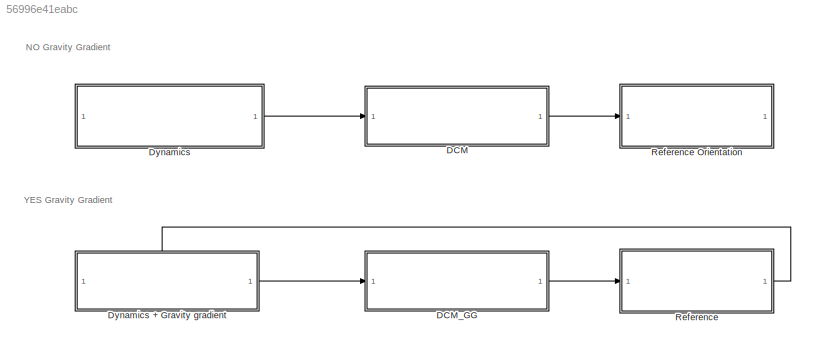
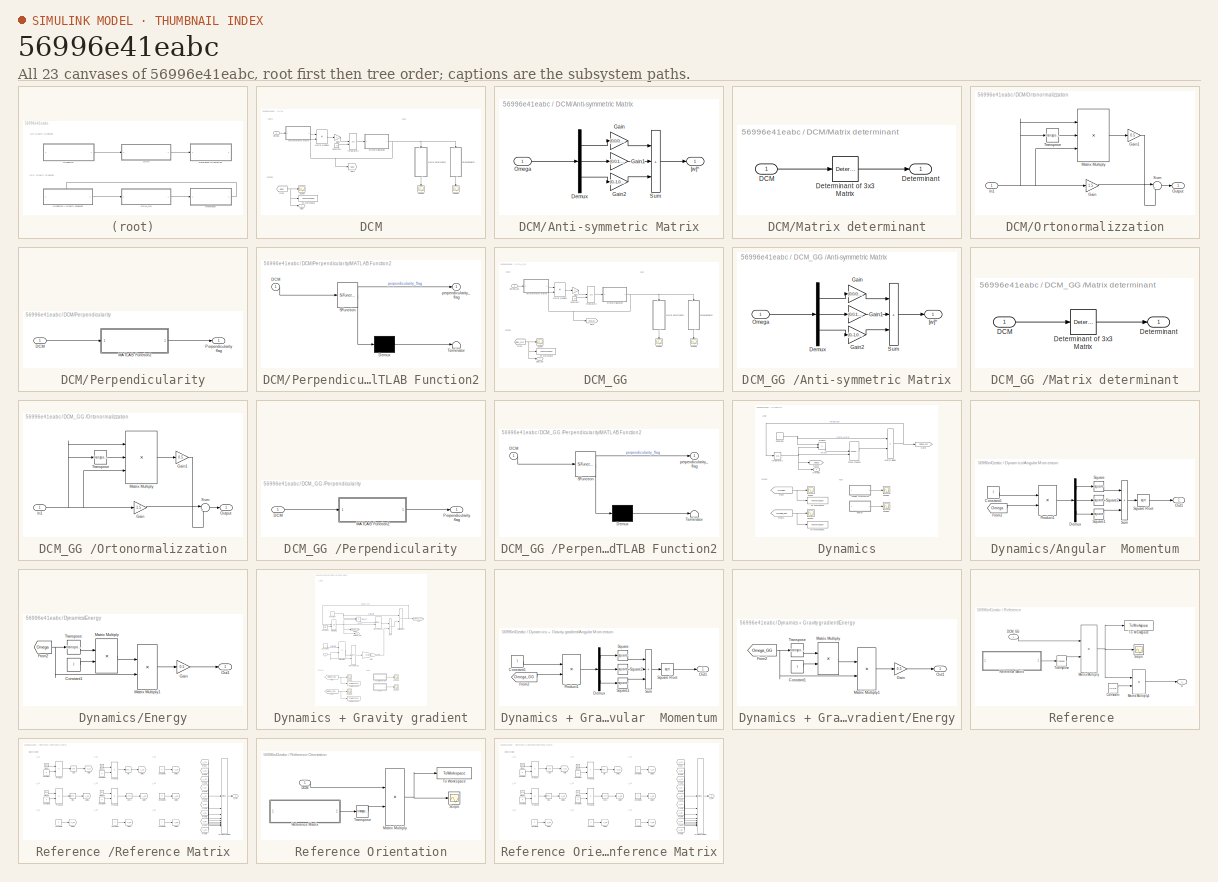
[diagram: thumbnail index - all 23 canvases of the model, root first then tree order]
MODEL slx_56996e41eabc
KIND model
CONFIG AbsTol = auto
CONFIG EnableMultiTasking = off
CONFIG FixedStep = 0.1
CONFIG MaxStep = auto
CONFIG MinStep = auto
CONFIG RelTol = 1e-3
CONFIG SampleTimeConstraint = Unconstrained
CONFIG SolverName = ode8
CONFIG StartTime = 0.0
CONFIG StopTime = 50000
BLOCK [SubSystem] DCM
BLOCK [SubSystem] DCM/Anti-symmetric Matrix
  NameLocation = top
BLOCK [Demux] DCM/Anti-symmetric Matrix/Demux
  Outputs = 3
BLOCK [Gain] DCM/Anti-symmetric Matrix/Gain
  Gain = [0,0,0;0,0,-1;0,1,0]
BLOCK [Gain] DCM/Anti-symmetric Matrix/Gain1
  Gain = [0,0,1;0,0,0;-1,0,0]
BLOCK [Gain] DCM/Anti-symmetric Matrix/Gain2
  Gain = [0,-1,0;1,0,0;0,0,0]
BLOCK [Inport] DCM/Anti-symmetric Matrix/Omega
BLOCK [Sum] DCM/Anti-symmetric Matrix/Sum
  IconShape = rectangular
  Inputs = +++
BLOCK [Outport] DCM/Anti-symmetric Matrix/[w]^
BLOCK [Constant] DCM/Constant1
  Value = A0
BLOCK [Outport] DCM/DCM
BLOCK [From] DCM/From
  GotoTag = DCM
  TagVisibility = global
BLOCK [Gain] DCM/Gain1
  Gain = -1
BLOCK [Goto] DCM/Goto
  GotoTag = DCM
  TagVisibility = global
BLOCK [Integrator] DCM/Integrator2
  InitialConditionSource = external
BLOCK [Product] DCM/Matrix Multiply1
  Multiplication = Matrix(*)
BLOCK [SubSystem] DCM/Matrix determinant
BLOCK [Inport] DCM/Matrix determinant/DCM
BLOCK [Outport] DCM/Matrix determinant/Determinant
BLOCK [Reference] DCM/Matrix determinant/Determinant of 3x3 Matrix  REF=sharedutil/Determinant of
3x3 Matrix
  LibrarySourceBlock = aerolibutil/Determinant of\n3x3 Matrix
  SourceBlock = sharedutil/Determinant of\n3x3 Matrix
  SourceType = Determinant of 3x3 Matrix
BLOCK [Inport] DCM/Omega
BLOCK [SubSystem] DCM/Ortonormalizzation
  NameLocation = top
BLOCK [Gain] DCM/Ortonormalizzation/Gain
  Gain = 1.5
BLOCK [Gain] DCM/Ortonormalizzation/Gain1
  Gain = 0.5
BLOCK [Inport] DCM/Ortonormalizzation/In1
BLOCK [Product] DCM/Ortonormalizzation/Matrix Multiply
  Inputs = 3
  Multiplication = Matrix(*)
BLOCK [Outport] DCM/Ortonormalizzation/Output
  NameLocation = top
BLOCK [Sum] DCM/Ortonormalizzation/Sum
  Inputs = |+-
BLOCK [Math] DCM/Ortonormalizzation/Transpose
  Operator = transpose
BLOCK [SubSystem] DCM/Perpendicularity
BLOCK [Inport] DCM/Perpendicularity/DCM
BLOCK [SubSystem] DCM/Perpendicularity/MATLAB Function2
  ErrorFcn = Stateflow.Translate.translate
  LibrarySourceBlock = simulink/User-Defined\nFunctions/MATLAB Function
  PermitHierarchicalResolution = ExplicitOnly
  SFBlockType = MATLAB Function
  TreatAsAtomicUnit = on
BLOCK [Demux] DCM/Perpendicularity/MATLAB Function2/ Demux 
  Outputs = 1
BLOCK [S-Function] DCM/Perpendicularity/MATLAB Function2/ SFunction 
  EnableBusSupport = on
  FunctionName = sf_sfun
  PortCounts = [1 2]
  SFcnIsStateOwnerBlock = off
  SFunctionDeploymentMode = off
  Tag = Stateflow S-Function 5
BLOCK [Terminator] DCM/Perpendicularity/MATLAB Function2/ Terminator 
BLOCK [Inport] DCM/Perpendicularity/MATLAB Function2/DCM
BLOCK [Outport] DCM/Perpendicularity/MATLAB Function2/perpendicularity_flag
BLOCK [Outport] DCM/Perpendicularity/Perpendicularity flag
BLOCK [Scope] DCM/Scope
  Floating = off
  NumInputPorts = 1
  ScopeSpecificationString = Simulink.scopes.TimeScopeBlockCfg('CurrentConfiguration', extmgr.ConfigurationSet(extmgr.Configuration('Core','General UI',true),extmgr.Configuration('Core','Source UI',true),extmgr.Configuration('Sources','WiredSimulink',true,'DataLoggingVariableName','ScopeData3'),extmgr.Configuration('Visuals','Time Domain',true,'SerializedDisplays',{struct('MinYLimReal','-1.25','MaxYLimReal','1.25','YLabelReal...<+1697ch>
BLOCK [Scope] DCM/Scope1
  Floating = off
  NameLocation = left
  NumInputPorts = 1
  ScopeSpecificationString = Simulink.scopes.TimeScopeBlockCfg('CurrentConfiguration', extmgr.ConfigurationSet(extmgr.Configuration('Core','General UI',true),extmgr.Configuration('Core','Source UI',true),extmgr.Configuration('Sources','WiredSimulink',true,'DataLoggingVariableName','ScopeData6'),extmgr.Configuration('Visuals','Time Domain',true,'SerializedDisplays',{struct('MinYLimReal','0.9999999999999993','MaxYLimReal','1.00...<+1492ch>
BLOCK [Scope] DCM/Scope2
  Floating = off
  NameLocation = left
  NumInputPorts = 1
  ScopeSpecificationString = Simulink.scopes.TimeScopeBlockCfg('CurrentConfiguration', extmgr.ConfigurationSet(extmgr.Configuration('Core','General UI',true),extmgr.Configuration('Core','Source UI',true),extmgr.Configuration('Sources','WiredSimulink',true,'DataLoggingVariableName','ScopeData7'),extmgr.Configuration('Visuals','Time Domain',true,'SerializedDisplays',{struct('MinYLimReal','-0.000000000005','MaxYLimReal','0.00000...<+1506ch>
BLOCK [ToWorkspace] DCM/To Workspace
  FixptAsFi = on
  MaxDataPoints = inf
  SampleTime = -1
  SaveFormat = Timeseries
  VariableName = DCM
BLOCK [SubSystem] DCM_GG 
BLOCK [SubSystem] DCM_GG /Anti-symmetric Matrix
  NameLocation = top
BLOCK [Demux] DCM_GG /Anti-symmetric Matrix/Demux
  Outputs = 3
BLOCK [Gain] DCM_GG /Anti-symmetric Matrix/Gain
  Gain = [0,0,0;0,0,-1;0,1,0]
BLOCK [Gain] DCM_GG /Anti-symmetric Matrix/Gain1
  Gain = [0,0,1;0,0,0;-1,0,0]
BLOCK [Gain] DCM_GG /Anti-symmetric Matrix/Gain2
  Gain = [0,-1,0;1,0,0;0,0,0]
BLOCK [Inport] DCM_GG /Anti-symmetric Matrix/Omega
BLOCK [Sum] DCM_GG /Anti-symmetric Matrix/Sum
  IconShape = rectangular
  Inputs = +++
BLOCK [Outport] DCM_GG /Anti-symmetric Matrix/[w]^
BLOCK [Constant] DCM_GG /Constant1
  Value = A0
BLOCK [Outport] DCM_GG /DCM_GG
BLOCK [From] DCM_GG /From
  GotoTag = DCM_GG
  TagVisibility = global
BLOCK [Gain] DCM_GG /Gain1
  Gain = -1
BLOCK [Goto] DCM_GG /Goto
  GotoTag = DCM_GG
  TagVisibility = global
BLOCK [Integrator] DCM_GG /Integrator2
  InitialConditionSource = external
BLOCK [Product] DCM_GG /Matrix Multiply1
  Multiplication = Matrix(*)
BLOCK [SubSystem] DCM_GG /Matrix determinant
BLOCK [Inport] DCM_GG /Matrix determinant/DCM
BLOCK [Outport] DCM_GG /Matrix determinant/Determinant
BLOCK [Reference] DCM_GG /Matrix determinant/Determinant of 3x3 Matrix  REF=sharedutil/Determinant of
3x3 Matrix
  LibrarySourceBlock = aerolibutil/Determinant of\n3x3 Matrix
  SourceBlock = sharedutil/Determinant of\n3x3 Matrix
  SourceType = Determinant of 3x3 Matrix
BLOCK [Inport] DCM_GG /Omega_GG
BLOCK [SubSystem] DCM_GG /Ortonormalizzation
  NameLocation = top
BLOCK [Gain] DCM_GG /Ortonormalizzation/Gain
  Gain = 1.5
BLOCK [Gain] DCM_GG /Ortonormalizzation/Gain1
  Gain = 0.5
BLOCK [Inport] DCM_GG /Ortonormalizzation/In1
BLOCK [Product] DCM_GG /Ortonormalizzation/Matrix Multiply
  Inputs = 3
  Multiplication = Matrix(*)
BLOCK [Outport] DCM_GG /Ortonormalizzation/Output
  NameLocation = top
BLOCK [Sum] DCM_GG /Ortonormalizzation/Sum
  Inputs = |+-
BLOCK [Math] DCM_GG /Ortonormalizzation/Transpose
  Operator = transpose
BLOCK [SubSystem] DCM_GG /Perpendicularity
BLOCK [Inport] DCM_GG /Perpendicularity/DCM
BLOCK [SubSystem] DCM_GG /Perpendicularity/MATLAB Function2
  ErrorFcn = Stateflow.Translate.translate
  LibrarySourceBlock = simulink/User-Defined\nFunctions/MATLAB Function
  PermitHierarchicalResolution = ExplicitOnly
  SFBlockType = MATLAB Function
  TreatAsAtomicUnit = on
BLOCK [Demux] DCM_GG /Perpendicularity/MATLAB Function2/ Demux 
  Outputs = 1
BLOCK [S-Function] DCM_GG /Perpendicularity/MATLAB Function2/ SFunction 
  EnableBusSupport = on
  FunctionName = sf_sfun
  PortCounts = [1 2]
  SFcnIsStateOwnerBlock = off
  SFunctionDeploymentMode = off
  Tag = Stateflow S-Function 3
BLOCK [Terminator] DCM_GG /Perpendicularity/MATLAB Function2/ Terminator 
BLOCK [Inport] DCM_GG /Perpendicularity/MATLAB Function2/DCM
BLOCK [Outport] DCM_GG /Perpendicularity/MATLAB Function2/perpendicularity_flag
BLOCK [Outport] DCM_GG /Perpendicularity/Perpendicularity flag
BLOCK [Scope] DCM_GG /Scope
  Floating = off
  NumInputPorts = 1
  ScopeSpecificationString = Simulink.scopes.TimeScopeBlockCfg('CurrentConfiguration', extmgr.ConfigurationSet(extmgr.Configuration('Core','General UI',true),extmgr.Configuration('Core','Source UI',true),extmgr.Configuration('Sources','WiredSimulink',true,'DataLoggingVariableName','ScopeData3'),extmgr.Configuration('Visuals','Time Domain',true,'SerializedDisplays',{struct('MinYLimReal','-1.25','MaxYLimReal','1.25','YLabelReal...<+1697ch>
BLOCK [Scope] DCM_GG /Scope1
  Floating = off
  NameLocation = left
  NumInputPorts = 1
  ScopeSpecificationString = Simulink.scopes.TimeScopeBlockCfg('CurrentConfiguration', extmgr.ConfigurationSet(extmgr.Configuration('Core','General UI',true),extmgr.Configuration('Core','Source UI',true),extmgr.Configuration('Sources','WiredSimulink',true,'DataLoggingVariableName','ScopeData6'),extmgr.Configuration('Visuals','Time Domain',true,'SerializedDisplays',{struct('MinYLimReal','0.9999999999999993','MaxYLimReal','1.00...<+1492ch>
BLOCK [Scope] DCM_GG /Scope2
  Floating = off
  NameLocation = left
  NumInputPorts = 1
  ScopeSpecificationString = Simulink.scopes.TimeScopeBlockCfg('CurrentConfiguration', extmgr.ConfigurationSet(extmgr.Configuration('Core','General UI',true),extmgr.Configuration('Core','Source UI',true),extmgr.Configuration('Sources','WiredSimulink',true,'DataLoggingVariableName','ScopeData7'),extmgr.Configuration('Visuals','Time Domain',true,'SerializedDisplays',{struct('MinYLimReal','-0.000000000005','MaxYLimReal','0.00000...<+1506ch>
BLOCK [ToWorkspace] DCM_GG /To Workspace
  FixptAsFi = on
  MaxDataPoints = inf
  SampleTime = -1
  SaveFormat = Timeseries
  VariableName = DCM_GG
BLOCK [SubSystem] Dynamics
BLOCK [SubSystem] Dynamics + Gravity gradient
  PortSchema = {"entries":[{"content":{"sides":[{"content":{"connectorIds":[]},"type":"ConnectorPlacement.EquallySpacedRectSide","uuid":"36bea6c2-7c38-4cde-ba01-7aa966ff8266"},{"content":{"connectorIds":["Out1"],"side":"RIGHT"},"type":"ConnectorPlacement.EquallySpacedRectSide","uuid":"092edf66-02b8-469a-ae06-6e78e709ba5c"},{"content":{"connectorIds":["In1"],"side":"TOP"},"type":"ConnectorPlacement.EquallySpacedR...<+384ch>
BLOCK [SubSystem] Dynamics + Gravity gradient/Angular  Momentum
BLOCK [Constant] Dynamics + Gravity gradient/Angular  Momentum/Constant1
  Value = I
BLOCK [Demux] Dynamics + Gravity gradient/Angular  Momentum/Demux
  Outputs = 3
BLOCK [From] Dynamics + Gravity gradient/Angular  Momentum/From2
  GotoTag = Omega_GG
  TagVisibility = global
BLOCK [Outport] Dynamics + Gravity gradient/Angular  Momentum/Out1
BLOCK [Product] Dynamics + Gravity gradient/Angular  Momentum/Product1
  Multiplication = Matrix(*)
BLOCK [Math] Dynamics + Gravity gradient/Angular  Momentum/Square
  Operator = square
BLOCK [Sqrt] Dynamics + Gravity gradient/Angular  Momentum/Square Root
BLOCK [Math] Dynamics + Gravity gradient/Angular  Momentum/Square1
  Operator = square
BLOCK [Math] Dynamics + Gravity gradient/Angular  Momentum/Square2
  Operator = square
BLOCK [Sum] Dynamics + Gravity gradient/Angular  Momentum/Sum
  IconShape = rectangular
  Inputs = +++
BLOCK [Constant] Dynamics + Gravity gradient/Constant
  Value = I
BLOCK [Constant] Dynamics + Gravity gradient/Constant1
  Value = w0
BLOCK [Constant] Dynamics + Gravity gradient/Constant2
  Value = I
BLOCK [Reference] Dynamics + Gravity gradient/Cross Product  REF=matrix_library/Cross Product
  LibrarySourceBlock = simulink/Matrix\nOperations/Cross Product
  SourceBlock = matrix_library/Cross Product
  SourceType = CrossProduct
BLOCK [Reference] Dynamics + Gravity gradient/Cross Product1  REF=matrix_library/Cross Product
  LibrarySourceBlock = simulink/Matrix\nOperations/Cross Product
  SourceBlock = matrix_library/Cross Product
  SourceType = CrossProduct
BLOCK [SubSystem] Dynamics + Gravity gradient/Energy
BLOCK [Constant] Dynamics + Gravity gradient/Energy/Constant1
  Value = I
BLOCK [From] Dynamics + Gravity gradient/Energy/From2
  GotoTag = Omega_GG
  TagVisibility = global
BLOCK [Gain] Dynamics + Gravity gradient/Energy/Gain
  Gain = 0.5
BLOCK [Product] Dynamics + Gravity gradient/Energy/Matrix Multiply
  Multiplication = Matrix(*)
BLOCK [Product] Dynamics + Gravity gradient/Energy/Matrix Multiply1
  Multiplication = Matrix(*)
BLOCK [Outport] Dynamics + Gravity gradient/Energy/Out1
BLOCK [Math] Dynamics + Gravity gradient/Energy/Transpose
  Operator = transpose
BLOCK [From] Dynamics + Gravity gradient/From
  GotoTag = Omega_GG
  TagVisibility = global
BLOCK [From] Dynamics + Gravity gradient/From1
  GotoTag = Omega_dot_GG
BLOCK [Gain] Dynamics + Gravity gradient/Gain
  Gain = 3*G*Mt/(R^3)
BLOCK [Goto] Dynamics + Gravity gradient/Goto
  GotoTag = Omega_dot_GG
BLOCK [Goto] Dynamics + Gravity gradient/Goto1
  GotoTag = Omega_GG
  TagVisibility = global
BLOCK [Integrator] Dynamics + Gravity gradient/Integrator1
  InitialCondition = w0
  InitialConditionSource = external
BLOCK [Product] Dynamics + Gravity gradient/Matrix Divide
  Inputs = /*
  Multiplication = Matrix(*)
BLOCK [Product] Dynamics + Gravity gradient/Matrix Multiply
  Multiplication = Matrix(*)
BLOCK [Outport] Dynamics + Gravity gradient/Omega_GG
BLOCK [Product] Dynamics + Gravity gradient/Product
  Multiplication = Matrix(*)
BLOCK [Scope] Dynamics + Gravity gradient/Scope
  Floating = off
  NumInputPorts = 1
  ScopeSpecificationString = Simulink.scopes.TimeScopeBlockCfg('CurrentConfiguration', extmgr.ConfigurationSet(extmgr.Configuration('Core','General UI',true),extmgr.Configuration('Core','Source UI',true),extmgr.Configuration('Sources','WiredSimulink',true,'DataLoggingVariableName','ScopeData2'),extmgr.Configuration('Visuals','Time Domain',true,'SerializedDisplays',{struct('MinYLimReal','-0.0027','MaxYLimReal','0.00265','YLabe...<+1388ch>
BLOCK [Scope] Dynamics + Gravity gradient/Scope1
  Floating = off
  NumInputPorts = 1
  ScopeSpecificationString = Simulink.scopes.TimeScopeBlockCfg('CurrentConfiguration', extmgr.ConfigurationSet(extmgr.Configuration('Core','General UI',true),extmgr.Configuration('Core','Source UI',true),extmgr.Configuration('Sources','WiredSimulink',true,'DataLoggingVariableName','ScopeData3'),extmgr.Configuration('Visuals','Time Domain',true,'SerializedDisplays',{struct('MinYLimReal','-0.0000033','MaxYLimReal','0.0000035','...<+1420ch>
BLOCK [Scope] Dynamics + Gravity gradient/Scope2
  Floating = off
  NumInputPorts = 1
  ScopeSpecificationString = Simulink.scopes.TimeScopeBlockCfg('CurrentConfiguration', extmgr.ConfigurationSet(extmgr.Configuration('Core','General UI',true),extmgr.Configuration('Core','Source UI',true),extmgr.Configuration('Sources','WiredSimulink',true,'DataLoggingVariableName','ScopeData4'),extmgr.Configuration('Visuals','Time Domain',true,'SerializedDisplays',{struct('MinYLimReal','0.00001','MaxYLimReal','0.00019','YLabe...<+1433ch>
BLOCK [Scope] Dynamics + Gravity gradient/Scope3
  Floating = off
  NumInputPorts = 1
  ScopeSpecificationString = Simulink.scopes.TimeScopeBlockCfg('CurrentConfiguration', extmgr.ConfigurationSet(extmgr.Configuration('Core','General UI',true),extmgr.Configuration('Core','Source UI',true),extmgr.Configuration('Sources','WiredSimulink',true,'DataLoggingVariableName','ScopeData5'),extmgr.Configuration('Visuals','Time Domain',true,'SerializedDisplays',{struct('MinYLimReal','-0.00000002','MaxYLimReal','0.00000025'...<+1450ch>
BLOCK [Sum] Dynamics + Gravity gradient/Sum
  IconShape = rectangular
  Inputs = +-
BLOCK [ToWorkspace] Dynamics + Gravity gradient/To Workspace
  FixptAsFi = on
  MaxDataPoints = inf
  SampleTime = -1
  SaveFormat = Timeseries
  VariableName = omega_GG
BLOCK [ToWorkspace] Dynamics + Gravity gradient/To Workspace1
  FixptAsFi = on
  MaxDataPoints = inf
  SampleTime = -1
  SaveFormat = Timeseries
  VariableName = omega_dot_Gg
BLOCK [Inport] Dynamics + Gravity gradient/c
BLOCK [SubSystem] Dynamics/Angular  Momentum
BLOCK [Constant] Dynamics/Angular  Momentum/Constant1
  Value = I
BLOCK [Demux] Dynamics/Angular  Momentum/Demux
  Outputs = 3
BLOCK [From] Dynamics/Angular  Momentum/From2
  GotoTag = Omega
  TagVisibility = global
BLOCK [Outport] Dynamics/Angular  Momentum/Out1
BLOCK [Product] Dynamics/Angular  Momentum/Product1
  Multiplication = Matrix(*)
BLOCK [Math] Dynamics/Angular  Momentum/Square
  Operator = square
BLOCK [Sqrt] Dynamics/Angular  Momentum/Square Root
BLOCK [Math] Dynamics/Angular  Momentum/Square1
  Operator = square
BLOCK [Math] Dynamics/Angular  Momentum/Square2
  Operator = square
BLOCK [Sum] Dynamics/Angular  Momentum/Sum
  IconShape = rectangular
  Inputs = +++
BLOCK [Constant] Dynamics/Constant
  Value = I
BLOCK [Reference] Dynamics/Cross Product  REF=matrix_library/Cross Product
  LibrarySourceBlock = simulink/Matrix\nOperations/Cross Product
  SourceBlock = matrix_library/Cross Product
  SourceType = CrossProduct
BLOCK [SubSystem] Dynamics/Energy
BLOCK [Constant] Dynamics/Energy/Constant1
  Value = I
BLOCK [From] Dynamics/Energy/From2
  GotoTag = Omega
  TagVisibility = global
BLOCK [Gain] Dynamics/Energy/Gain
  Gain = 0.5
BLOCK [Product] Dynamics/Energy/Matrix Multiply
  Multiplication = Matrix(*)
BLOCK [Product] Dynamics/Energy/Matrix Multiply1
  Multiplication = Matrix(*)
BLOCK [Outport] Dynamics/Energy/Out1
BLOCK [Math] Dynamics/Energy/Transpose
  Operator = transpose
BLOCK [From] Dynamics/From
  GotoTag = Omega
  TagVisibility = global
BLOCK [From] Dynamics/From1
  GotoTag = Omega_dot
BLOCK [Goto] Dynamics/Goto
  GotoTag = Omega_dot
BLOCK [Goto] Dynamics/Goto1
  GotoTag = Omega
  TagVisibility = global
BLOCK [Integrator] Dynamics/Integrator1
  InitialCondition = w0
BLOCK [Product] Dynamics/Matrix Divide
  Inputs = /*
  Multiplication = Matrix(*)
BLOCK [Outport] Dynamics/Omega
BLOCK [Product] Dynamics/Product
  Multiplication = Matrix(*)
BLOCK [Scope] Dynamics/Scope
  Floating = off
  NumInputPorts = 1
  ScopeSpecificationString = Simulink.scopes.TimeScopeBlockCfg('CurrentConfiguration', extmgr.ConfigurationSet(extmgr.Configuration('Core','General UI',true),extmgr.Configuration('Core','Source UI',true),extmgr.Configuration('Sources','WiredSimulink',true),extmgr.Configuration('Visuals','Time Domain',true,'SerializedDisplays',{struct('MinYLimReal','-0.00016','MaxYLimReal','0.00139','YLabelReal','','MinYLimMag','0.00000','MaxY...<+1382ch>
BLOCK [Scope] Dynamics/Scope1
  Floating = off
  NumInputPorts = 1
  ScopeSpecificationString = Simulink.scopes.TimeScopeBlockCfg('CurrentConfiguration', extmgr.ConfigurationSet(extmgr.Configuration('Core','General UI',true),extmgr.Configuration('Core','Source UI',true),extmgr.Configuration('Sources','WiredSimulink',true,'DataLoggingVariableName','ScopeData1'),extmgr.Configuration('Visuals','Time Domain',true,'SerializedDisplays',{struct('MinYLimReal','-0.42457','MaxYLimReal','0.42457','YLab...<+1404ch>
BLOCK [Scope] Dynamics/Scope2
  Floating = off
  NumInputPorts = 1
  ScopeSpecificationString = Simulink.scopes.TimeScopeBlockCfg('CurrentConfiguration', extmgr.ConfigurationSet(extmgr.Configuration('Core','General UI',true),extmgr.Configuration('Core','Source UI',true),extmgr.Configuration('Sources','WiredSimulink',true,'DataLoggingVariableName','ScopeData1'),extmgr.Configuration('Visuals','Time Domain',true,'SerializedDisplays',{struct('MinYLimReal','0.0000495279754922935','MaxYLimReal','0...<+1522ch>
BLOCK [Scope] Dynamics/Scope3
  Floating = off
  NumInputPorts = 1
  ScopeSpecificationString = Simulink.scopes.TimeScopeBlockCfg('CurrentConfiguration', extmgr.ConfigurationSet(extmgr.Configuration('Core','General UI',true),extmgr.Configuration('Core','Source UI',true),extmgr.Configuration('Sources','WiredSimulink',true,'DataLoggingVariableName','ScopeData2'),extmgr.Configuration('Visuals','Time Domain',true,'SerializedDisplays',{struct('MinYLimReal','0.0000000306626994545653','MaxYLimReal'...<+1535ch>
BLOCK [ToWorkspace] Dynamics/To Workspace
  FixptAsFi = on
  MaxDataPoints = inf
  SampleTime = -1
  SaveFormat = Timeseries
  VariableName = omega
BLOCK [ToWorkspace] Dynamics/To Workspace1
  FixptAsFi = on
  MaxDataPoints = inf
  SampleTime = -1
  SaveFormat = Timeseries
  VariableName = omega_dot
BLOCK [SubSystem] Reference 
BLOCK [Constant] Reference /Constant
  Value = [1;0;0]
BLOCK [Inport] Reference /DCM_GG
BLOCK [Product] Reference /Matrix Multiply
  Multiplication = Matrix(*)
BLOCK [Product] Reference /Matrix Multiply1
  Multiplication = Matrix(*)
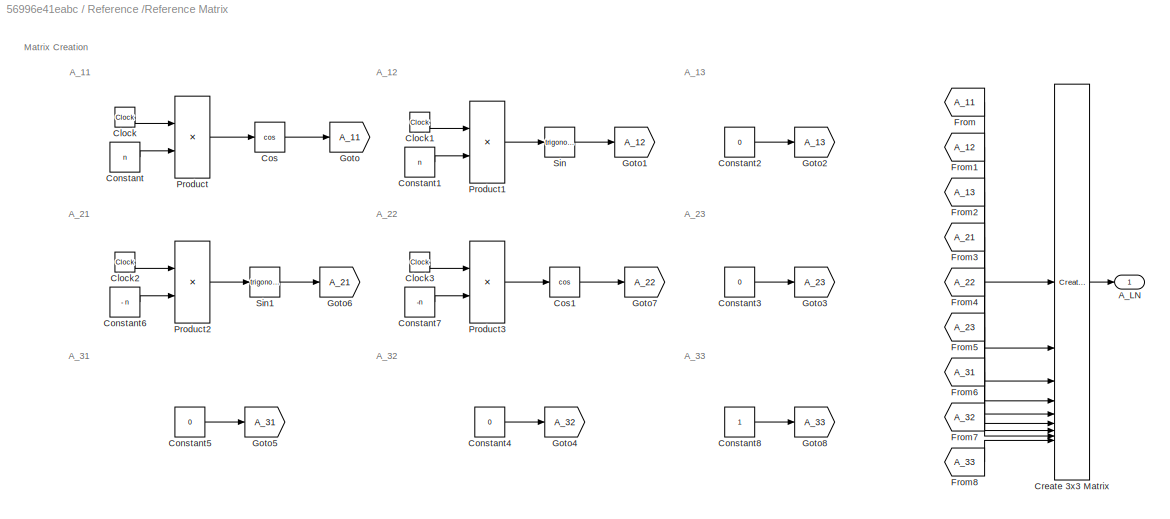
BLOCK [SubSystem] Reference /Reference Matrix
BLOCK [Outport] Reference /Reference Matrix/A_LN
BLOCK [Clock] Reference /Reference Matrix/Clock
BLOCK [Clock] Reference /Reference Matrix/Clock1
BLOCK [Clock] Reference /Reference Matrix/Clock2
BLOCK [Clock] Reference /Reference Matrix/Clock3
BLOCK [Constant] Reference /Reference Matrix/Constant
  Value = n
BLOCK [Constant] Reference /Reference Matrix/Constant1
  Value = n
BLOCK [Constant] Reference /Reference Matrix/Constant2
  Value = 0
BLOCK [Constant] Reference /Reference Matrix/Constant3
  Value = 0
BLOCK [Constant] Reference /Reference Matrix/Constant4
  Value = 0
BLOCK [Constant] Reference /Reference Matrix/Constant5
  Value = 0
BLOCK [Constant] Reference /Reference Matrix/Constant6
  Value = - n
  VectorParams1D = off
BLOCK [Constant] Reference /Reference Matrix/Constant7
  Value = -n
BLOCK [Constant] Reference /Reference Matrix/Constant8
BLOCK [Trigonometry] Reference /Reference Matrix/Cos
  Operator = cos
BLOCK [Trigonometry] Reference /Reference Matrix/Cos1
  Operator = cos
BLOCK [Reference] Reference /Reference Matrix/Create 3x3 Matrix  REF=sharedutil/Create 3x3 Matrix
  LibrarySourceBlock = aerolibutil/Create 3x3 Matrix
  SourceBlock = sharedutil/Create 3x3 Matrix
  SourceType = Create 3x3 Matrix
BLOCK [From] Reference /Reference Matrix/From
  GotoTag = A_11
BLOCK [From] Reference /Reference Matrix/From1
  GotoTag = A_12
BLOCK [From] Reference /Reference Matrix/From2
  GotoTag = A_13
BLOCK [From] Reference /Reference Matrix/From3
  GotoTag = A_21
BLOCK [From] Reference /Reference Matrix/From4
  GotoTag = A_22
BLOCK [From] Reference /Reference Matrix/From5
  GotoTag = A_23
BLOCK [From] Reference /Reference Matrix/From6
  GotoTag = A_31
BLOCK [From] Reference /Reference Matrix/From7
  GotoTag = A_32
BLOCK [From] Reference /Reference Matrix/From8
  GotoTag = A_33
BLOCK [Goto] Reference /Reference Matrix/Goto
  GotoTag = A_11
BLOCK [Goto] Reference /Reference Matrix/Goto1
  GotoTag = A_12
BLOCK [Goto] Reference /Reference Matrix/Goto2
  GotoTag = A_13
BLOCK [Goto] Reference /Reference Matrix/Goto3
  GotoTag = A_23
BLOCK [Goto] Reference /Reference Matrix/Goto4
  GotoTag = A_32
BLOCK [Goto] Reference /Reference Matrix/Goto5
  GotoTag = A_31
BLOCK [Goto] Reference /Reference Matrix/Goto6
  GotoTag = A_21
BLOCK [Goto] Reference /Reference Matrix/Goto7
  GotoTag = A_22
BLOCK [Goto] Reference /Reference Matrix/Goto8
  GotoTag = A_33
BLOCK [Product] Reference /Reference Matrix/Product
BLOCK [Product] Reference /Reference Matrix/Product1
BLOCK [Product] Reference /Reference Matrix/Product2
BLOCK [Product] Reference /Reference Matrix/Product3
BLOCK [Trigonometry] Reference /Reference Matrix/Sin
BLOCK [Trigonometry] Reference /Reference Matrix/Sin1
BLOCK [Scope] Reference /Scope
  Floating = off
  NumInputPorts = 1
  ScopeSpecificationString = Simulink.scopes.TimeScopeBlockCfg('CurrentConfiguration', extmgr.ConfigurationSet(extmgr.Configuration('Core','General UI',true),extmgr.Configuration('Core','Source UI',true),extmgr.Configuration('Sources','WiredSimulink',true,'DataLoggingVariableName','ScopeData1'),extmgr.Configuration('Visuals','Time Domain',true,'SerializedDisplays',{struct('MinYLimReal','-1.25','MaxYLimReal','1.25','YLabelReal...<+1570ch>
BLOCK [ToWorkspace] Reference /To Workspace
  FixptAsFi = on
  MaxDataPoints = inf
  SampleTime = -1
  VariableName = Attitude_Error
BLOCK [Math] Reference /Transpose
  Operator = transpose
BLOCK [Outport] Reference /c
BLOCK [SubSystem] Reference Orientation
BLOCK [Inport] Reference Orientation/DCM
BLOCK [Product] Reference Orientation/Matrix Multiply
  Multiplication = Matrix(*)
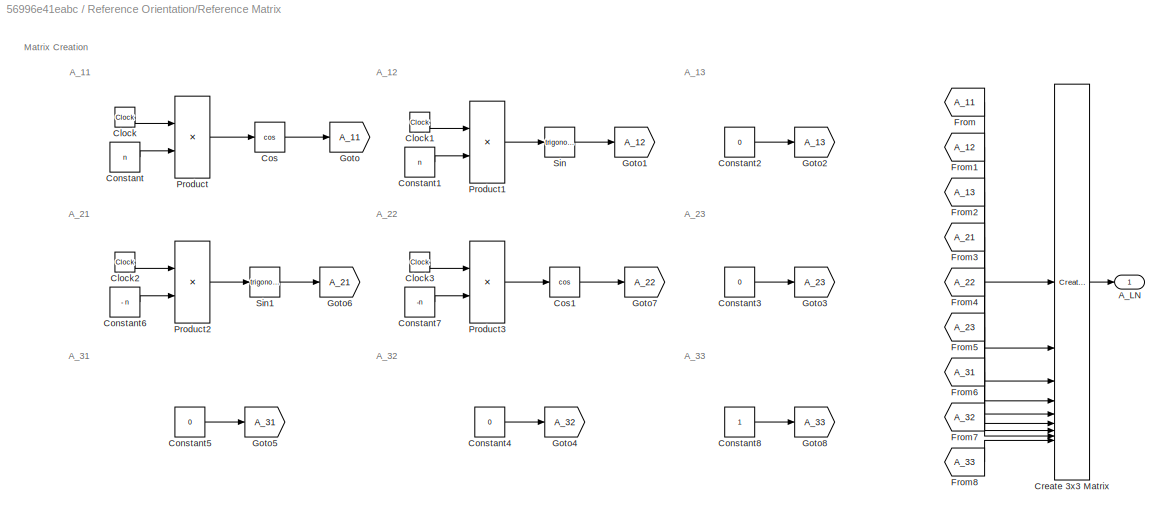
BLOCK [SubSystem] Reference Orientation/Reference Matrix
BLOCK [Outport] Reference Orientation/Reference Matrix/A_LN
BLOCK [Clock] Reference Orientation/Reference Matrix/Clock
BLOCK [Clock] Reference Orientation/Reference Matrix/Clock1
BLOCK [Clock] Reference Orientation/Reference Matrix/Clock2
BLOCK [Clock] Reference Orientation/Reference Matrix/Clock3
BLOCK [Constant] Reference Orientation/Reference Matrix/Constant
  Value = n
BLOCK [Constant] Reference Orientation/Reference Matrix/Constant1
  Value = n
BLOCK [Constant] Reference Orientation/Reference Matrix/Constant2
  Value = 0
BLOCK [Constant] Reference Orientation/Reference Matrix/Constant3
  Value = 0
BLOCK [Constant] Reference Orientation/Reference Matrix/Constant4
  Value = 0
BLOCK [Constant] Reference Orientation/Reference Matrix/Constant5
  Value = 0
BLOCK [Constant] Reference Orientation/Reference Matrix/Constant6
  Value = - n
  VectorParams1D = off
BLOCK [Constant] Reference Orientation/Reference Matrix/Constant7
  Value = -n
BLOCK [Constant] Reference Orientation/Reference Matrix/Constant8
BLOCK [Trigonometry] Reference Orientation/Reference Matrix/Cos
  Operator = cos
BLOCK [Trigonometry] Reference Orientation/Reference Matrix/Cos1
  Operator = cos
BLOCK [Reference] Reference Orientation/Reference Matrix/Create 3x3 Matrix  REF=sharedutil/Create 3x3 Matrix
  LibrarySourceBlock = aerolibutil/Create 3x3 Matrix
  SourceBlock = sharedutil/Create 3x3 Matrix
  SourceType = Create 3x3 Matrix
BLOCK [From] Reference Orientation/Reference Matrix/From
  GotoTag = A_11
BLOCK [From] Reference Orientation/Reference Matrix/From1
  GotoTag = A_12
BLOCK [From] Reference Orientation/Reference Matrix/From2
  GotoTag = A_13
BLOCK [From] Reference Orientation/Reference Matrix/From3
  GotoTag = A_21
BLOCK [From] Reference Orientation/Reference Matrix/From4
  GotoTag = A_22
BLOCK [From] Reference Orientation/Reference Matrix/From5
  GotoTag = A_23
BLOCK [From] Reference Orientation/Reference Matrix/From6
  GotoTag = A_31
BLOCK [From] Reference Orientation/Reference Matrix/From7
  GotoTag = A_32
BLOCK [From] Reference Orientation/Reference Matrix/From8
  GotoTag = A_33
BLOCK [Goto] Reference Orientation/Reference Matrix/Goto
  GotoTag = A_11
BLOCK [Goto] Reference Orientation/Reference Matrix/Goto1
  GotoTag = A_12
BLOCK [Goto] Reference Orientation/Reference Matrix/Goto2
  GotoTag = A_13
BLOCK [Goto] Reference Orientation/Reference Matrix/Goto3
  GotoTag = A_23
BLOCK [Goto] Reference Orientation/Reference Matrix/Goto4
  GotoTag = A_32
BLOCK [Goto] Reference Orientation/Reference Matrix/Goto5
  GotoTag = A_31
BLOCK [Goto] Reference Orientation/Reference Matrix/Goto6
  GotoTag = A_21
BLOCK [Goto] Reference Orientation/Reference Matrix/Goto7
  GotoTag = A_22
BLOCK [Goto] Reference Orientation/Reference Matrix/Goto8
  GotoTag = A_33
BLOCK [Product] Reference Orientation/Reference Matrix/Product
BLOCK [Product] Reference Orientation/Reference Matrix/Product1
BLOCK [Product] Reference Orientation/Reference Matrix/Product2
BLOCK [Product] Reference Orientation/Reference Matrix/Product3
BLOCK [Trigonometry] Reference Orientation/Reference Matrix/Sin
BLOCK [Trigonometry] Reference Orientation/Reference Matrix/Sin1
BLOCK [Scope] Reference Orientation/Scope
  Floating = off
  NumInputPorts = 1
  ScopeSpecificationString = Simulink.scopes.TimeScopeBlockCfg('CurrentConfiguration', extmgr.ConfigurationSet(extmgr.Configuration('Core','General UI',true),extmgr.Configuration('Core','Source UI',true),extmgr.Configuration('Sources','WiredSimulink',true,'DataLoggingVariableName','ScopeData1'),extmgr.Configuration('Visuals','Time Domain',true,'SerializedDisplays',{struct('MinYLimReal','-0.1296','MaxYLimReal','1.12551','YLabe...<+1428ch>
BLOCK [ToWorkspace] Reference Orientation/To Workspace
  FixptAsFi = on
  MaxDataPoints = inf
  SampleTime = -1
  VariableName = err
BLOCK [Math] Reference Orientation/Transpose
  Operator = transpose
ANNOTATION (root): NO Gravity Gradient
ANNOTATION (root): YES Gravity Gradient
ANNOTATION DCM: LOGIC
ANNOTATION DCM: SCOPES
ANNOTATION DCM: TEST
ANNOTATION DCM_GG : LOGIC
ANNOTATION DCM_GG : SCOPES
ANNOTATION DCM_GG : TEST
ANNOTATION Dynamics: Logic
ANNOTATION Dynamics: Scopes
ANNOTATION Dynamics: TEST
ANNOTATION Dynamics + Gravity gradient: Logic
ANNOTATION Dynamics + Gravity gradient: Scopes
ANNOTATION Dynamics + Gravity gradient: TEST
ANNOTATION Reference /Reference Matrix: A_11
ANNOTATION Reference /Reference Matrix: A_12
ANNOTATION Reference /Reference Matrix: A_13
ANNOTATION Reference /Reference Matrix: A_21
ANNOTATION Reference /Reference Matrix: A_22
ANNOTATION Reference /Reference Matrix: A_23
ANNOTATION Reference /Reference Matrix: A_31
ANNOTATION Reference /Reference Matrix: A_32
ANNOTATION Reference /Reference Matrix: A_33
ANNOTATION Reference /Reference Matrix: Matrix Creation
ANNOTATION Reference Orientation/Reference Matrix: A_11
ANNOTATION Reference Orientation/Reference Matrix: A_12
ANNOTATION Reference Orientation/Reference Matrix: A_13
ANNOTATION Reference Orientation/Reference Matrix: A_21
ANNOTATION Reference Orientation/Reference Matrix: A_22
ANNOTATION Reference Orientation/Reference Matrix: A_23
ANNOTATION Reference Orientation/Reference Matrix: A_31
ANNOTATION Reference Orientation/Reference Matrix: A_32
ANNOTATION Reference Orientation/Reference Matrix: A_33
ANNOTATION Reference Orientation/Reference Matrix: Matrix Creation
LINE DCM/Anti-symmetric Matrix/Demux:1 -> DCM/Anti-symmetric Matrix/Gain:1
LINE DCM/Anti-symmetric Matrix/Demux:2 -> DCM/Anti-symmetric Matrix/Gain1:1
LINE DCM/Anti-symmetric Matrix/Demux:3 -> DCM/Anti-symmetric Matrix/Gain2:1
LINE DCM/Anti-symmetric Matrix/Gain1:1 -> DCM/Anti-symmetric Matrix/Sum:2
LINE DCM/Anti-symmetric Matrix/Gain2:1 -> DCM/Anti-symmetric Matrix/Sum:3
LINE DCM/Anti-symmetric Matrix/Gain:1 -> DCM/Anti-symmetric Matrix/Sum:1
LINE DCM/Anti-symmetric Matrix/Omega:1 -> DCM/Anti-symmetric Matrix/Demux:1
LINE DCM/Anti-symmetric Matrix/Sum:1 -> DCM/Anti-symmetric Matrix/[w]^:1
LINE DCM/Anti-symmetric Matrix:1 -> DCM/Matrix Multiply1:1
LINE DCM/Constant1:1 -> DCM/Integrator2:2
NET DCM/From:1 -> DCM/DCM:1, DCM/Scope:1, DCM/To Workspace:1
LINE DCM/Gain1:1 -> DCM/Integrator2:1
LINE DCM/Integrator2:1 -> DCM/Ortonormalizzation:1
LINE DCM/Matrix Multiply1:1 -> DCM/Gain1:1
LINE DCM/Matrix determinant/DCM:1 -> DCM/Matrix determinant/Determinant of 3x3 Matrix:1
LINE DCM/Matrix determinant/Determinant of 3x3 Matrix:1 -> DCM/Matrix determinant/Determinant:1
LINE DCM/Matrix determinant:1 -> DCM/Scope1:1
LINE DCM/Omega:1 -> DCM/Anti-symmetric Matrix:1
LINE DCM/Ortonormalizzation/Gain1:1 -> DCM/Ortonormalizzation/Sum:2
LINE DCM/Ortonormalizzation/Gain:1 -> DCM/Ortonormalizzation/Sum:1
NET DCM/Ortonormalizzation/In1:1 -> DCM/Ortonormalizzation/Gain:1, DCM/Ortonormalizzation/Matrix Multiply:1, DCM/Ortonormalizzation/Matrix Multiply:3, DCM/Ortonormalizzation/Transpose:1
LINE DCM/Ortonormalizzation/Matrix Multiply:1 -> DCM/Ortonormalizzation/Gain1:1
LINE DCM/Ortonormalizzation/Sum:1 -> DCM/Ortonormalizzation/Output:1
LINE DCM/Ortonormalizzation/Transpose:1 -> DCM/Ortonormalizzation/Matrix Multiply:2
NET DCM/Ortonormalizzation:1 -> DCM/Goto:1, DCM/Matrix Multiply1:2, DCM/Matrix determinant:1, DCM/Perpendicularity:1
LINE DCM/Perpendicularity/DCM:1 -> DCM/Perpendicularity/MATLAB Function2:1
LINE DCM/Perpendicularity/MATLAB Function2:1 -> DCM/Perpendicularity/Perpendicularity flag:1
LINE DCM/Perpendicularity:1 -> DCM/Scope2:1
LINE DCM:1 -> Reference Orientation:1
LINE DCM_GG /Anti-symmetric Matrix/Demux:1 -> DCM_GG /Anti-symmetric Matrix/Gain:1
LINE DCM_GG /Anti-symmetric Matrix/Demux:2 -> DCM_GG /Anti-symmetric Matrix/Gain1:1
LINE DCM_GG /Anti-symmetric Matrix/Demux:3 -> DCM_GG /Anti-symmetric Matrix/Gain2:1
LINE DCM_GG /Anti-symmetric Matrix/Gain1:1 -> DCM_GG /Anti-symmetric Matrix/Sum:2
LINE DCM_GG /Anti-symmetric Matrix/Gain2:1 -> DCM_GG /Anti-symmetric Matrix/Sum:3
LINE DCM_GG /Anti-symmetric Matrix/Gain:1 -> DCM_GG /Anti-symmetric Matrix/Sum:1
LINE DCM_GG /Anti-symmetric Matrix/Omega:1 -> DCM_GG /Anti-symmetric Matrix/Demux:1
LINE DCM_GG /Anti-symmetric Matrix/Sum:1 -> DCM_GG /Anti-symmetric Matrix/[w]^:1
LINE DCM_GG /Anti-symmetric Matrix:1 -> DCM_GG /Matrix Multiply1:1
LINE DCM_GG /Constant1:1 -> DCM_GG /Integrator2:2
NET DCM_GG /From:1 -> DCM_GG /DCM_GG:1, DCM_GG /Scope:1, DCM_GG /To Workspace:1
LINE DCM_GG /Gain1:1 -> DCM_GG /Integrator2:1
LINE DCM_GG /Integrator2:1 -> DCM_GG /Ortonormalizzation:1
LINE DCM_GG /Matrix Multiply1:1 -> DCM_GG /Gain1:1
LINE DCM_GG /Matrix determinant/DCM:1 -> DCM_GG /Matrix determinant/Determinant of 3x3 Matrix:1
LINE DCM_GG /Matrix determinant/Determinant of 3x3 Matrix:1 -> DCM_GG /Matrix determinant/Determinant:1
LINE DCM_GG /Matrix determinant:1 -> DCM_GG /Scope1:1
LINE DCM_GG /Omega_GG:1 -> DCM_GG /Anti-symmetric Matrix:1
LINE DCM_GG /Ortonormalizzation/Gain1:1 -> DCM_GG /Ortonormalizzation/Sum:2
LINE DCM_GG /Ortonormalizzation/Gain:1 -> DCM_GG /Ortonormalizzation/Sum:1
NET DCM_GG /Ortonormalizzation/In1:1 -> DCM_GG /Ortonormalizzation/Gain:1, DCM_GG /Ortonormalizzation/Matrix Multiply:1, DCM_GG /Ortonormalizzation/Matrix Multiply:3, DCM_GG /Ortonormalizzation/Transpose:1
LINE DCM_GG /Ortonormalizzation/Matrix Multiply:1 -> DCM_GG /Ortonormalizzation/Gain1:1
LINE DCM_GG /Ortonormalizzation/Sum:1 -> DCM_GG /Ortonormalizzation/Output:1
LINE DCM_GG /Ortonormalizzation/Transpose:1 -> DCM_GG /Ortonormalizzation/Matrix Multiply:2
NET DCM_GG /Ortonormalizzation:1 -> DCM_GG /Goto:1, DCM_GG /Matrix Multiply1:2, DCM_GG /Matrix determinant:1, DCM_GG /Perpendicularity:1
LINE DCM_GG /Perpendicularity/DCM:1 -> DCM_GG /Perpendicularity/MATLAB Function2:1
LINE DCM_GG /Perpendicularity/MATLAB Function2:1 -> DCM_GG /Perpendicularity/Perpendicularity flag:1
LINE DCM_GG /Perpendicularity:1 -> DCM_GG /Scope2:1
LINE DCM_GG :1 -> Reference :1
LINE Dynamics + Gravity gradient/Angular  Momentum/Constant1:1 -> Dynamics + Gravity gradient/Angular  Momentum/Product1:1
LINE Dynamics + Gravity gradient/Angular  Momentum/Demux:1 -> Dynamics + Gravity gradient/Angular  Momentum/Square:1
LINE Dynamics + Gravity gradient/Angular  Momentum/Demux:2 -> Dynamics + Gravity gradient/Angular  Momentum/Square2:1
LINE Dynamics + Gravity gradient/Angular  Momentum/Demux:3 -> Dynamics + Gravity gradient/Angular  Momentum/Square1:1
LINE Dynamics + Gravity gradient/Angular  Momentum/From2:1 -> Dynamics + Gravity gradient/Angular  Momentum/Product1:2
LINE Dynamics + Gravity gradient/Angular  Momentum/Product1:1 -> Dynamics + Gravity gradient/Angular  Momentum/Demux:1
LINE Dynamics + Gravity gradient/Angular  Momentum/Square Root:1 -> Dynamics + Gravity gradient/Angular  Momentum/Out1:1
LINE Dynamics + Gravity gradient/Angular  Momentum/Square1:1 -> Dynamics + Gravity gradient/Angular  Momentum/Sum:3
LINE Dynamics + Gravity gradient/Angular  Momentum/Square2:1 -> Dynamics + Gravity gradient/Angular  Momentum/Sum:2
LINE Dynamics + Gravity gradient/Angular  Momentum/Square:1 -> Dynamics + Gravity gradient/Angular  Momentum/Sum:1
LINE Dynamics + Gravity gradient/Angular  Momentum/Sum:1 -> Dynamics + Gravity gradient/Angular  Momentum/Square Root:1
LINE Dynamics + Gravity gradient/Angular  Momentum:1 -> Dynamics + Gravity gradient/Scope2:1
LINE Dynamics + Gravity gradient/Constant1:1 -> Dynamics + Gravity gradient/Integrator1:2
LINE Dynamics + Gravity gradient/Constant2:1 -> Dynamics + Gravity gradient/Matrix Multiply:1
NET Dynamics + Gravity gradient/Constant:1 -> Dynamics + Gravity gradient/Matrix Divide:1, Dynamics + Gravity gradient/Product:1
LINE Dynamics + Gravity gradient/Cross Product1:1 -> Dynamics + Gravity gradient/Gain:1
LINE Dynamics + Gravity gradient/Cross Product:1 -> Dynamics + Gravity gradient/Sum:1
LINE Dynamics + Gravity gradient/Energy/Constant1:1 -> Dynamics + Gravity gradient/Energy/Matrix Multiply:2
NET Dynamics + Gravity gradient/Energy/From2:1 -> Dynamics + Gravity gradient/Energy/Matrix Multiply1:2, Dynamics + Gravity gradient/Energy/Transpose:1
LINE Dynamics + Gravity gradient/Energy/Gain:1 -> Dynamics + Gravity gradient/Energy/Out1:1
LINE Dynamics + Gravity gradient/Energy/Matrix Multiply1:1 -> Dynamics + Gravity gradient/Energy/Gain:1
LINE Dynamics + Gravity gradient/Energy/Matrix Multiply:1 -> Dynamics + Gravity gradient/Energy/Matrix Multiply1:1
LINE Dynamics + Gravity gradient/Energy/Transpose:1 -> Dynamics + Gravity gradient/Energy/Matrix Multiply:1
LINE Dynamics + Gravity gradient/Energy:1 -> Dynamics + Gravity gradient/Scope3:1
NET Dynamics + Gravity gradient/From1:1 -> Dynamics + Gravity gradient/Scope1:1, Dynamics + Gravity gradient/To Workspace1:1
NET Dynamics + Gravity gradient/From:1 -> Dynamics + Gravity gradient/Scope:1, Dynamics + Gravity gradient/To Workspace:1
LINE Dynamics + Gravity gradient/Gain:1 -> Dynamics + Gravity gradient/Sum:2
NET Dynamics + Gravity gradient/Integrator1:1 -> Dynamics + Gravity gradient/Cross Product:2, Dynamics + Gravity gradient/Goto1:1, Dynamics + Gravity gradient/Omega_GG:1, Dynamics + Gravity gradient/Product:2
NET Dynamics + Gravity gradient/Matrix Divide:1 -> Dynamics + Gravity gradient/Goto:1, Dynamics + Gravity gradient/Integrator1:1
LINE Dynamics + Gravity gradient/Matrix Multiply:1 -> Dynamics + Gravity gradient/Cross Product1:1
LINE Dynamics + Gravity gradient/Product:1 -> Dynamics + Gravity gradient/Cross Product:1
LINE Dynamics + Gravity gradient/Sum:1 -> Dynamics + Gravity gradient/Matrix Divide:2
NET Dynamics + Gravity gradient/c:1 -> Dynamics + Gravity gradient/Cross Product1:2, Dynamics + Gravity gradient/Matrix Multiply:2
LINE Dynamics + Gravity gradient:1 -> DCM_GG :1
LINE Dynamics/Angular  Momentum/Constant1:1 -> Dynamics/Angular  Momentum/Product1:1
LINE Dynamics/Angular  Momentum/Demux:1 -> Dynamics/Angular  Momentum/Square:1
LINE Dynamics/Angular  Momentum/Demux:2 -> Dynamics/Angular  Momentum/Square2:1
LINE Dynamics/Angular  Momentum/Demux:3 -> Dynamics/Angular  Momentum/Square1:1
LINE Dynamics/Angular  Momentum/From2:1 -> Dynamics/Angular  Momentum/Product1:2
LINE Dynamics/Angular  Momentum/Product1:1 -> Dynamics/Angular  Momentum/Demux:1
LINE Dynamics/Angular  Momentum/Square Root:1 -> Dynamics/Angular  Momentum/Out1:1
LINE Dynamics/Angular  Momentum/Square1:1 -> Dynamics/Angular  Momentum/Sum:3
LINE Dynamics/Angular  Momentum/Square2:1 -> Dynamics/Angular  Momentum/Sum:2
LINE Dynamics/Angular  Momentum/Square:1 -> Dynamics/Angular  Momentum/Sum:1
LINE Dynamics/Angular  Momentum/Sum:1 -> Dynamics/Angular  Momentum/Square Root:1
LINE Dynamics/Angular  Momentum:1 -> Dynamics/Scope2:1
NET Dynamics/Constant:1 -> Dynamics/Matrix Divide:1, Dynamics/Product:1
LINE Dynamics/Cross Product:1 -> Dynamics/Matrix Divide:2
LINE Dynamics/Energy/Constant1:1 -> Dynamics/Energy/Matrix Multiply:2
NET Dynamics/Energy/From2:1 -> Dynamics/Energy/Matrix Multiply1:2, Dynamics/Energy/Transpose:1
LINE Dynamics/Energy/Gain:1 -> Dynamics/Energy/Out1:1
LINE Dynamics/Energy/Matrix Multiply1:1 -> Dynamics/Energy/Gain:1
LINE Dynamics/Energy/Matrix Multiply:1 -> Dynamics/Energy/Matrix Multiply1:1
LINE Dynamics/Energy/Transpose:1 -> Dynamics/Energy/Matrix Multiply:1
LINE Dynamics/Energy:1 -> Dynamics/Scope3:1
NET Dynamics/From1:1 -> Dynamics/Scope1:1, Dynamics/To Workspace1:1
NET Dynamics/From:1 -> Dynamics/Scope:1, Dynamics/To Workspace:1
NET Dynamics/Integrator1:1 -> Dynamics/Cross Product:2, Dynamics/Goto1:1, Dynamics/Omega:1, Dynamics/Product:2
NET Dynamics/Matrix Divide:1 -> Dynamics/Goto:1, Dynamics/Integrator1:1
LINE Dynamics/Product:1 -> Dynamics/Cross Product:1
LINE Dynamics:1 -> DCM:1
LINE Reference /Constant:1 -> Reference /Matrix Multiply1:2
LINE Reference /DCM_GG:1 -> Reference /Matrix Multiply:1
LINE Reference /Matrix Multiply1:1 -> Reference /c:1
NET Reference /Matrix Multiply:1 -> Reference /Matrix Multiply1:1, Reference /Scope:1, Reference /To Workspace:1
LINE Reference /Reference Matrix/Clock1:1 -> Reference /Reference Matrix/Product1:1
LINE Reference /Reference Matrix/Clock2:1 -> Reference /Reference Matrix/Product2:1
LINE Reference /Reference Matrix/Clock3:1 -> Reference /Reference Matrix/Product3:1
LINE Reference /Reference Matrix/Clock:1 -> Reference /Reference Matrix/Product:1
LINE Reference /Reference Matrix/Constant1:1 -> Reference /Reference Matrix/Product1:2
LINE Reference /Reference Matrix/Constant2:1 -> Reference /Reference Matrix/Goto2:1
LINE Reference /Reference Matrix/Constant3:1 -> Reference /Reference Matrix/Goto3:1
LINE Reference /Reference Matrix/Constant4:1 -> Reference /Reference Matrix/Goto4:1
LINE Reference /Reference Matrix/Constant5:1 -> Reference /Reference Matrix/Goto5:1
LINE Reference /Reference Matrix/Constant6:1 -> Reference /Reference Matrix/Product2:2
LINE Reference /Reference Matrix/Constant7:1 -> Reference /Reference Matrix/Product3:2
LINE Reference /Reference Matrix/Constant8:1 -> Reference /Reference Matrix/Goto8:1
LINE Reference /Reference Matrix/Constant:1 -> Reference /Reference Matrix/Product:2
LINE Reference /Reference Matrix/Cos1:1 -> Reference /Reference Matrix/Goto7:1
LINE Reference /Reference Matrix/Cos:1 -> Reference /Reference Matrix/Goto:1
LINE Reference /Reference Matrix/Create 3x3 Matrix:1 -> Reference /Reference Matrix/A_LN:1
LINE Reference /Reference Matrix/From1:1 -> Reference /Reference Matrix/Create 3x3 Matrix:2
LINE Reference /Reference Matrix/From2:1 -> Reference /Reference Matrix/Create 3x3 Matrix:3
LINE Reference /Reference Matrix/From3:1 -> Reference /Reference Matrix/Create 3x3 Matrix:4
LINE Reference /Reference Matrix/From4:1 -> Reference /Reference Matrix/Create 3x3 Matrix:5
LINE Reference /Reference Matrix/From5:1 -> Reference /Reference Matrix/Create 3x3 Matrix:6
LINE Reference /Reference Matrix/From6:1 -> Reference /Reference Matrix/Create 3x3 Matrix:7
LINE Reference /Reference Matrix/From7:1 -> Reference /Reference Matrix/Create 3x3 Matrix:8
LINE Reference /Reference Matrix/From8:1 -> Reference /Reference Matrix/Create 3x3 Matrix:9
LINE Reference /Reference Matrix/From:1 -> Reference /Reference Matrix/Create 3x3 Matrix:1
LINE Reference /Reference Matrix/Product1:1 -> Reference /Reference Matrix/Sin:1
LINE Reference /Reference Matrix/Product2:1 -> Reference /Reference Matrix/Sin1:1
LINE Reference /Reference Matrix/Product3:1 -> Reference /Reference Matrix/Cos1:1
LINE Reference /Reference Matrix/Product:1 -> Reference /Reference Matrix/Cos:1
LINE Reference /Reference Matrix/Sin1:1 -> Reference /Reference Matrix/Goto6:1
LINE Reference /Reference Matrix/Sin:1 -> Reference /Reference Matrix/Goto1:1
LINE Reference /Reference Matrix:1 -> Reference /Transpose:1
LINE Reference /Transpose:1 -> Reference /Matrix Multiply:2
LINE Reference :1 -> Dynamics + Gravity gradient:1
LINE Reference Orientation/DCM:1 -> Reference Orientation/Matrix Multiply:1
NET Reference Orientation/Matrix Multiply:1 -> Reference Orientation/Scope:1, Reference Orientation/To Workspace:1
LINE Reference Orientation/Reference Matrix/Clock1:1 -> Reference Orientation/Reference Matrix/Product1:1
LINE Reference Orientation/Reference Matrix/Clock2:1 -> Reference Orientation/Reference Matrix/Product2:1
LINE Reference Orientation/Reference Matrix/Clock3:1 -> Reference Orientation/Reference Matrix/Product3:1
LINE Reference Orientation/Reference Matrix/Clock:1 -> Reference Orientation/Reference Matrix/Product:1
LINE Reference Orientation/Reference Matrix/Constant1:1 -> Reference Orientation/Reference Matrix/Product1:2
LINE Reference Orientation/Reference Matrix/Constant2:1 -> Reference Orientation/Reference Matrix/Goto2:1
LINE Reference Orientation/Reference Matrix/Constant3:1 -> Reference Orientation/Reference Matrix/Goto3:1
LINE Reference Orientation/Reference Matrix/Constant4:1 -> Reference Orientation/Reference Matrix/Goto4:1
LINE Reference Orientation/Reference Matrix/Constant5:1 -> Reference Orientation/Reference Matrix/Goto5:1
LINE Reference Orientation/Reference Matrix/Constant6:1 -> Reference Orientation/Reference Matrix/Product2:2
LINE Reference Orientation/Reference Matrix/Constant7:1 -> Reference Orientation/Reference Matrix/Product3:2
LINE Reference Orientation/Reference Matrix/Constant8:1 -> Reference Orientation/Reference Matrix/Goto8:1
LINE Reference Orientation/Reference Matrix/Constant:1 -> Reference Orientation/Reference Matrix/Product:2
LINE Reference Orientation/Reference Matrix/Cos1:1 -> Reference Orientation/Reference Matrix/Goto7:1
LINE Reference Orientation/Reference Matrix/Cos:1 -> Reference Orientation/Reference Matrix/Goto:1
LINE Reference Orientation/Reference Matrix/Create 3x3 Matrix:1 -> Reference Orientation/Reference Matrix/A_LN:1
LINE Reference Orientation/Reference Matrix/From1:1 -> Reference Orientation/Reference Matrix/Create 3x3 Matrix:2
LINE Reference Orientation/Reference Matrix/From2:1 -> Reference Orientation/Reference Matrix/Create 3x3 Matrix:3
LINE Reference Orientation/Reference Matrix/From3:1 -> Reference Orientation/Reference Matrix/Create 3x3 Matrix:4
LINE Reference Orientation/Reference Matrix/From4:1 -> Reference Orientation/Reference Matrix/Create 3x3 Matrix:5
LINE Reference Orientation/Reference Matrix/From5:1 -> Reference Orientation/Reference Matrix/Create 3x3 Matrix:6
LINE Reference Orientation/Reference Matrix/From6:1 -> Reference Orientation/Reference Matrix/Create 3x3 Matrix:7
LINE Reference Orientation/Reference Matrix/From7:1 -> Reference Orientation/Reference Matrix/Create 3x3 Matrix:8
LINE Reference Orientation/Reference Matrix/From8:1 -> Reference Orientation/Reference Matrix/Create 3x3 Matrix:9
LINE Reference Orientation/Reference Matrix/From:1 -> Reference Orientation/Reference Matrix/Create 3x3 Matrix:1
LINE Reference Orientation/Reference Matrix/Product1:1 -> Reference Orientation/Reference Matrix/Sin:1
LINE Reference Orientation/Reference Matrix/Product2:1 -> Reference Orientation/Reference Matrix/Sin1:1
LINE Reference Orientation/Reference Matrix/Product3:1 -> Reference Orientation/Reference Matrix/Cos1:1
LINE Reference Orientation/Reference Matrix/Product:1 -> Reference Orientation/Reference Matrix/Cos:1
LINE Reference Orientation/Reference Matrix/Sin1:1 -> Reference Orientation/Reference Matrix/Goto6:1
LINE Reference Orientation/Reference Matrix/Sin:1 -> Reference Orientation/Reference Matrix/Goto1:1
LINE Reference Orientation/Reference Matrix:1 -> Reference Orientation/Transpose:1
LINE Reference Orientation/Transpose:1 -> Reference Orientation/Matrix Multiply:2
note: NET lines group one-source signal fan-out (src -> all destinations, sorted); 1:1 wires keep LINE
CHART DCM/Perpendicularity/MATLAB Function2 states=1 transitions=1
  STATE_LABEL 'eML_blk_kernel()'
  STATE_LABEL 'SCRIPT:\nfunction perpendicularity_flag = fcn(DCM)\n    \n\nperpendicularity_flag =zeros(3,1);\n\n    x   = DCM(1,:);\n    y   = DCM(2,:);\n    z   = DCM(3,:);\n\n    perpendicularity_flag(1)=dot(x,y);\n    perpendicularity_flag(2)=dot(x,z);\n    perpendicularity_flag(3)=dot(z,y);\n\nend\n\n'
CHART DCM_GG /Perpendicularity/MATLAB Function2 states=1 transitions=1
  STATE_LABEL 'eML_blk_kernel()'
  STATE_LABEL 'SCRIPT:\nfunction perpendicularity_flag = fcn(DCM)\n    \n\nperpendicularity_flag =zeros(3,1);\n\n    x   = DCM(1,:);\n    y   = DCM(2,:);\n    z   = DCM(3,:);\n\n    perpendicularity_flag(1)=dot(x,y);\n    perpendicularity_flag(2)=dot(x,z);\n    perpendicularity_flag(3)=dot(z,y);\n\nend\n\n'
CHART  states=0 transitions=0
CHART  states=0 transitions=0
